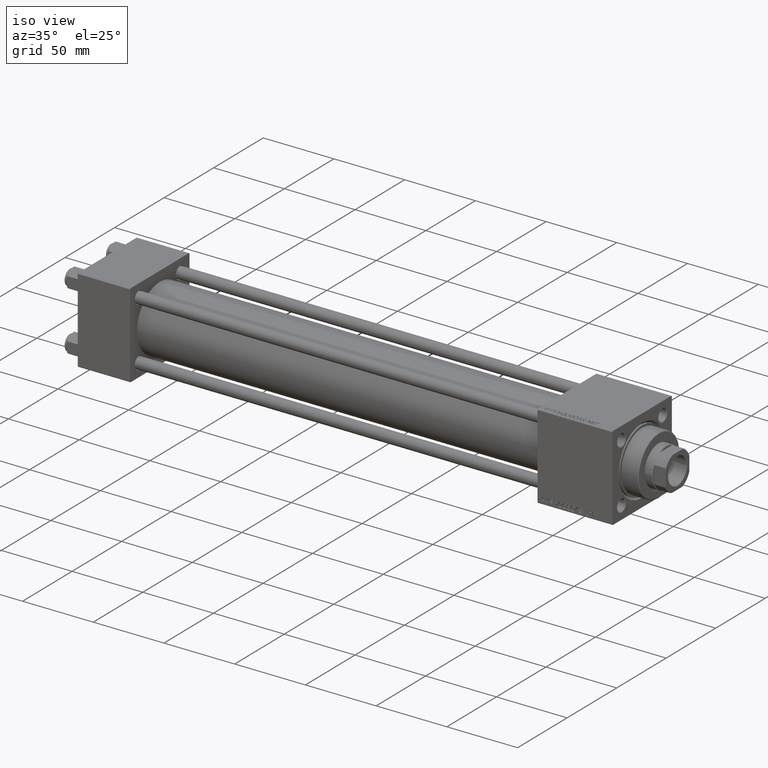
[diagram: clean part render]
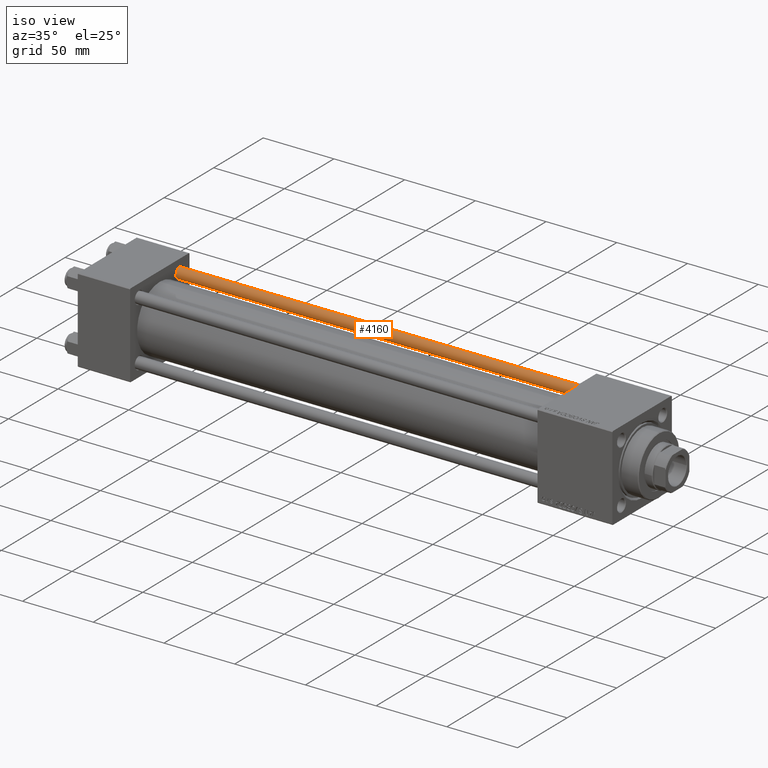
[diagram: same view with one face highlighted and labeled with its STEP entity id]
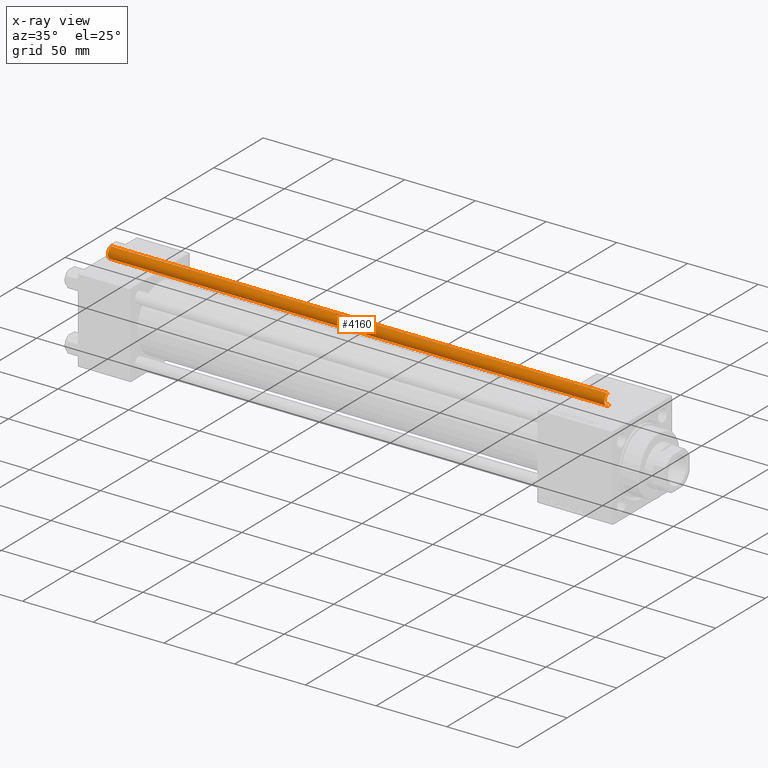
[diagram: x-ray of the same camera — body ghosted, the highlighted face saturated]
A machine part, iso view. The second image highlights one B-rep face of the part: STEP entity #4160.
The next image is the same camera in x-ray: the body ghosted, the highlighted face saturated — about 0% of this face is hidden behind the body in this view.
In plain terms, the highlighted cylindrical surface (edge-blend (fillet) strip) has radius 4 mm, axis along (-1, 0, 0).
Its self-contained STEP definition (entity closure, byte-faithful):
#1520 = LINE ( 'NONE', #4582, #49020 ) ;
#1573 = CARTESIAN_POINT ( 'NONE',  ( 0.000000000000000000, 0.000000000000000000, 0.5000000000000004441 ) ) ;
#2547 = CYLINDRICAL_SURFACE ( 'NONE', #19326, 4.000000000000000000 ) ;
#3579 = VERTEX_POINT ( 'NONE', #42061 ) ;
#4160 = ADVANCED_FACE ( 'NONE', ( #13938 ), #2547, .T. ) ;
#4582 = CARTESIAN_POINT ( 'NONE',  ( -4.000000000000000000, 0.000000000000000000, 352.0000000000000000 ) ) ;
#4830 = DIRECTION ( 'NONE',  ( -0.000000000000000000, -0.000000000000000000, -1.000000000000000000 ) ) ;
#5365 = VERTEX_POINT ( 'NONE', #16892 ) ;
#6760 = CARTESIAN_POINT ( 'NONE',  ( 4.000000000000000000, 4.898587196589412829E-16, 352.0000000000000000 ) ) ;
#9772 = CARTESIAN_POINT ( 'NONE',  ( 4.000000000000000000, 4.898587196589412829E-16, 0.5000000000000004441 ) ) ;
#10047 = CIRCLE ( 'NONE', #38451, 4.000000000000000000 ) ;
#11400 = AXIS2_PLACEMENT_3D ( 'NONE', #27273, #50162, #15580 ) ;
#11716 = EDGE_CURVE ( 'NONE', #5365, #26867, #10047, .T. ) ;
#13183 = CARTESIAN_POINT ( 'NONE',  ( -4.000000000000000000, 0.000000000000000000, 351.5000000000000000 ) ) ;
#13938 = FACE_OUTER_BOUND ( 'NONE', #35462, .T. ) ;
#15580 = DIRECTION ( 'NONE',  ( 1.000000000000000000, 0.000000000000000000, 0.000000000000000000 ) ) ;
#16892 = CARTESIAN_POINT ( 'NONE',  ( -4.000000000000000000, 0.000000000000000000, 0.5000000000000004441 ) ) ;
#18014 = CARTESIAN_POINT ( 'NONE',  ( 0.000000000000000000, 0.000000000000000000, 352.0000000000000000 ) ) ;
#19326 = AXIS2_PLACEMENT_3D ( 'NONE', #18014, #33514, #29699 ) ;
#22503 = DIRECTION ( 'NONE',  ( -0.000000000000000000, -0.000000000000000000, -1.000000000000000000 ) ) ;
#24158 = ORIENTED_EDGE ( 'NONE', *, *, #47200, .T. ) ;
#25423 = DIRECTION ( 'NONE',  ( 1.000000000000000000, 0.000000000000000000, 0.000000000000000000 ) ) ;
#26063 = LINE ( 'NONE', #6760, #34523 ) ;
#26867 = VERTEX_POINT ( 'NONE', #9772 ) ;
#27273 = CARTESIAN_POINT ( 'NONE',  ( 0.000000000000000000, 0.000000000000000000, 351.5000000000000000 ) ) ;
#29699 = DIRECTION ( 'NONE',  ( -1.000000000000000000, 0.000000000000000000, 0.000000000000000000 ) ) ;
#30068 = CIRCLE ( 'NONE', #11400, 4.000000000000000000 ) ;
#33046 = DIRECTION ( 'NONE',  ( -0.000000000000000000, -0.000000000000000000, 1.000000000000000000 ) ) ;
#33514 = DIRECTION ( 'NONE',  ( -0.000000000000000000, -0.000000000000000000, -1.000000000000000000 ) ) ;
#33703 = ORIENTED_EDGE ( 'NONE', *, *, #49488, .F. ) ;
#34523 = VECTOR ( 'NONE', #22503, 1000.000000000000000 ) ;
#34832 = EDGE_CURVE ( 'NONE', #3579, #35222, #30068, .T. ) ;
#35222 = VERTEX_POINT ( 'NONE', #13183 ) ;
#35462 = EDGE_LOOP ( 'NONE', ( #33703, #48716, #24158, #46660 ) ) ;
#38451 = AXIS2_PLACEMENT_3D ( 'NONE', #1573, #33046, #25423 ) ;
#42061 = CARTESIAN_POINT ( 'NONE',  ( 4.000000000000000000, 4.898587196589412829E-16, 351.5000000000000000 ) ) ;
#46660 = ORIENTED_EDGE ( 'NONE', *, *, #11716, .T. ) ;
#47200 = EDGE_CURVE ( 'NONE', #35222, #5365, #1520, .T. ) ;
#48716 = ORIENTED_EDGE ( 'NONE', *, *, #34832, .T. ) ;
#49020 = VECTOR ( 'NONE', #4830, 1000.000000000000000 ) ;
#49488 = EDGE_CURVE ( 'NONE', #3579, #26867, #26063, .T. ) ;
#50162 = DIRECTION ( 'NONE',  ( 0.000000000000000000, 0.000000000000000000, -1.000000000000000000 ) ) ;